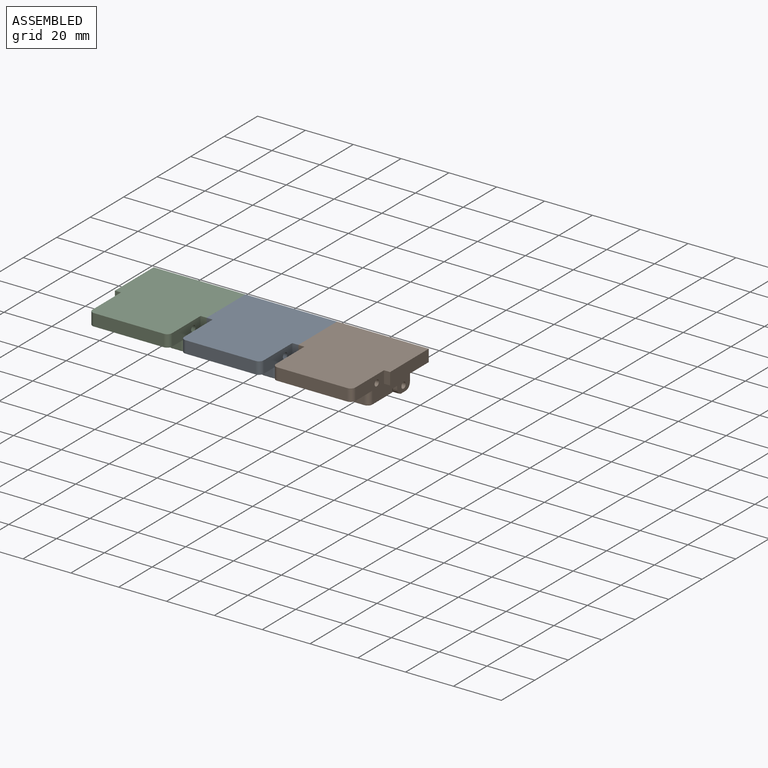
[diagram: assembled view]
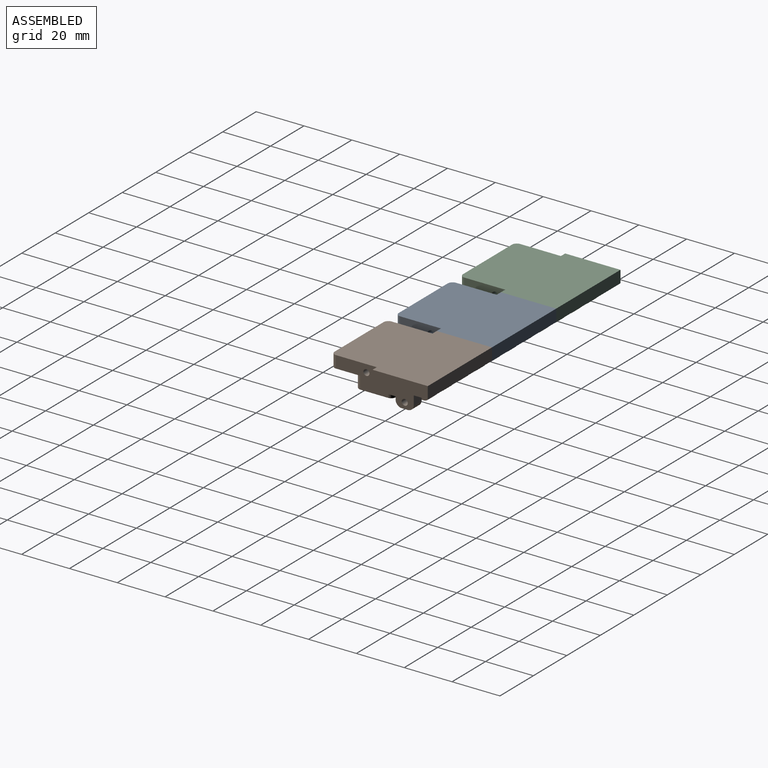
[diagram: assembled view, second angle]
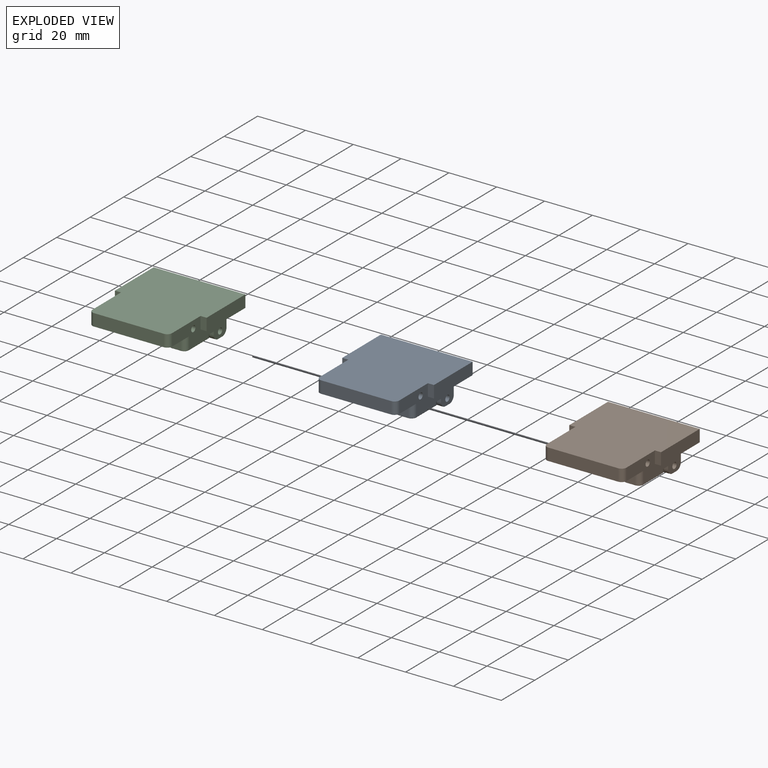
[diagram: exploded view]
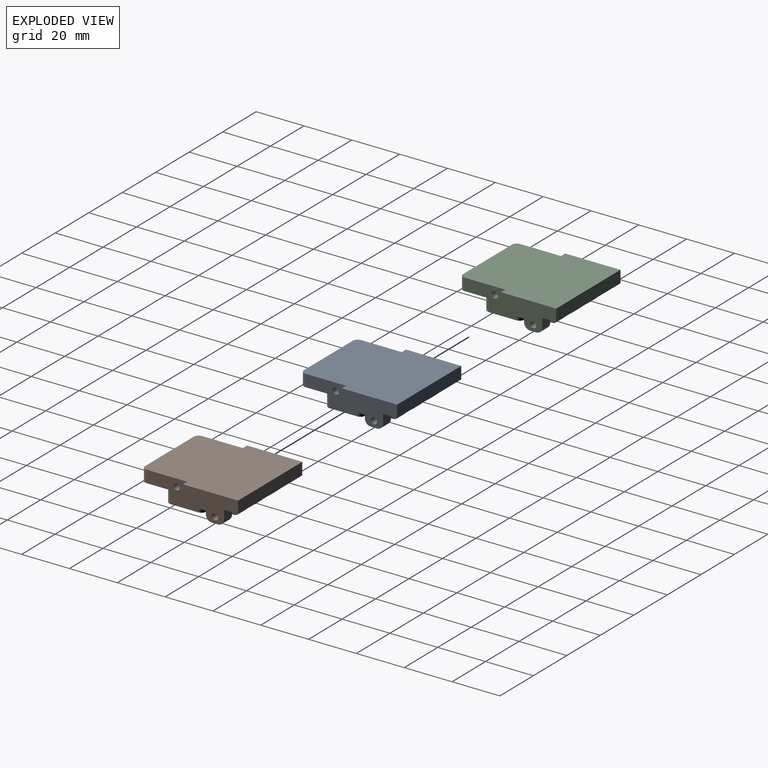
[diagram: exploded view, second angle]
ASSEMBLY  parts=3 mates=2
PART A: 132 faces, bbox 38.4x42.2x12.7 mm
  f0: plane 42.16x38.35mm, normal (0,0,1), area 1518.6mm2, adj f2,f30,f31,f124,f125,f126,f127,f128
  f1: plane 38.35x23.11mm, normal (0,0,-1), area 481.3mm2, adj f14,f15,f16,f30,f31,f38,f39,f40
  f2: plane 29.21x5.08mm, normal (0,-1,0), area 148.4mm2, adj f0,f123,f129,f130
  f3: plane 5.23x1.27mm, normal (0,1,0), area 6.6mm2, adj f10,f21,f66,f92
  f4: plane 5.89x1.27mm, normal (0,1,0), area 7.5mm2, adj f10,f63,f67,f118
  f5: plane 5.89x1.27mm, normal (0,1,0), area 7.5mm2, adj f10,f60,f64,f112
  f6: plane 29.21x5.08mm, normal (0,-1,0), area 71mm2, adj f69,f70,f71,f75,f76,f77,f78,f79
  f7: plane 32.77x16.52mm, normal (0,0,-1), area 145.7mm2, adj f43,f44,f52,f53,f85,f86,f87,f88
  f8: plane 5.38x2.03mm, normal (0,0,-1), area 9.6mm2, adj f116,f117,f118,f119,f120,f121
  f9: plane 5.38x2.03mm, normal (0,0,-1), area 9.6mm2, adj f110,f111,f112,f113,f114,f115
  f10: plane 28.19x11.68mm, normal (0,0,-1), area 296.7mm2, adj f3,f4,f5,f20,f21,f22,f23,f24
  f11: plane 4.7x2.54mm, normal (0,0,-1), area 11.9mm2, adj f43,f47,f50,f53
  f12: plane 4.7x2.54mm, normal (0,0,-1), area 11.9mm2, adj f40,f44,f49,f52
  f13: plane 4.7x2.54mm, normal (0,0,-1), area 11.9mm2, adj f31,f41,f48,f51
  f14: plane 5.08x4.7mm, normal (0,1,0), area 23.9mm2, adj f1,f30,f46,f55
  f15: plane 5.08x4.7mm, normal (0,1,0), area 23.9mm2, adj f1,f43,f47,f50
  f16: plane 5.08x4.7mm, normal (0,1,0), area 23.9mm2, adj f1,f40,f44,f49
  f17: plane 4.7x1.27mm, normal (0,-1,0), area 6mm2, adj f30,f34,f46,f54
  f18: plane 1.27x0.33mm, normal (0,-1,0), area 0.4mm2, adj f29,f34,f47,f53
  f19: plane 1.27x0.33mm, normal (0,-1,0), area 0.4mm2, adj f32,f35,f40,f52
  f20: plane 5.23x1.27mm, normal (0,1,0), area 6.6mm2, adj f10,f33,f61,f108
  f21: plane 10.57x1.27mm, normal (1,0,0), area 13.4mm2, adj f3,f10,f22,f93
  f22: plane 7.51x1.27mm, normal (0.15,-0.99,0), area 9.6mm2, adj f10,f21,f23,f94
  f23: plane 4.99x1.27mm, normal (0,-1,0), area 6.3mm2, adj f10,f22,f24,f95
  f24: plane 1.27x1.17mm, normal (-1,0,0), area 1.5mm2, adj f10,f23,f25,f96
  f25: cylinder r=1.6mm len=3.2mm, axis (0,0,1), area 6.4mm2, adj f10,f24,f26,f98
  f26: plane 1.27x1.17mm, normal (1,0,0), area 1.5mm2, adj f10,f25,f27,f100
  f27: plane 4.99x1.27mm, normal (0,-1,0), area 6.3mm2, adj f10,f26,f28,f102
  f28: plane 7.51x1.27mm, normal (-0.15,-0.99,0), area 9.6mm2, adj f10,f27,f33,f104
  f29: plane 8.13x1.27mm, normal (-0.15,0.99,0), area 10.4mm2, adj f18,f34,f81,f85
  f30: plane 32.51x12.7mm, normal (-1,0,0), area 202.4mm2, adj f0,f1,f14,f17,f34,f37,f54,f55
  f31: plane 32.51x12.7mm, normal (1,0,0), area 202.4mm2, adj f0,f1,f13,f35,f36,f38,f48,f51
  f32: plane 8.13x1.27mm, normal (0.15,0.99,0), area 10.4mm2, adj f19,f35,f84,f97
  f33: plane 10.57x1.27mm, normal (-1,0,0), area 13.4mm2, adj f10,f20,f28,f106
  f34: plane 9.86x3.21mm, normal (0,0,-1), area 7.8mm2, adj f17,f18,f29,f30,f45,f81
  f35: plane 9.86x3.21mm, normal (0,0,-1), area 7.8mm2, adj f19,f31,f32,f36,f39,f84
  f36: plane 4.7x1.27mm, normal (0,-1,0), area 6mm2, adj f31,f35,f41,f51
  f37: plane 4.7x2.54mm, normal (0,0,-1), area 11.9mm2, adj f30,f46,f54,f55
  f38: plane 5.08x4.7mm, normal (0,1,0), area 23.9mm2, adj f1,f31,f41,f48
  f39: plane 4.83x3.81mm, normal (0,1,0), area 18.4mm2, adj f1,f35,f40,f41
  f40: plane 7.62x7.62mm, normal (1,0,0), area 50.2mm2, adj f1,f12,f16,f19,f39,f49,f52,f58
  f41: plane 7.62x7.62mm, normal (-1,0,0), area 50.2mm2, adj f1,f13,f36,f38,f39,f48,f51,f59
  f42: plane 5.08x4.83mm, normal (0,1,0), area 24.5mm2, adj f1,f43,f44,f122
  f43: plane 7.87x7.62mm, normal (1,0,0), area 50.2mm2, adj f1,f7,f11,f15,f42,f50,f53,f56
  f44: plane 7.87x7.62mm, normal (-1,0,0), area 50.2mm2, adj f1,f7,f12,f16,f42,f49,f52,f58
  f45: plane 4.83x3.81mm, normal (0,1,0), area 18.4mm2, adj f1,f34,f46,f47
  f46: plane 7.62x7.62mm, normal (1,0,0), area 50.2mm2, adj f1,f14,f17,f37,f45,f54,f55,f57
  f47: plane 7.62x7.62mm, normal (-1,0,0), area 50.2mm2, adj f1,f11,f15,f18,f45,f50,f53,f56
  f48: cylinder r=2.54mm len=4.7mm, axis (1,0,0), area 18.7mm2, adj f13,f31,f38,f41
  f49: cylinder r=2.54mm len=4.7mm, axis (1,0,0), area 18.7mm2, adj f12,f16,f40,f44
  f50: cylinder r=2.54mm len=4.7mm, axis (1,0,0), area 18.7mm2, adj f11,f15,f43,f47
  f51: cylinder r=2.54mm len=4.7mm, axis (-1,0,0), area 18.7mm2, adj f13,f31,f36,f41
  f52: cylinder r=2.54mm len=4.7mm, axis (-1,0,0), area 17.9mm2, adj f7,f12,f19,f40,f44,f97
  f53: cylinder r=2.54mm len=4.7mm, axis (-1,0,0), area 17.9mm2, adj f7,f11,f18,f43,f47,f85
  f54: cylinder r=2.54mm len=4.7mm, axis (-1,0,0), area 18.7mm2, adj f17,f30,f37,f46
  f55: cylinder r=2.54mm len=4.7mm, axis (1,0,0), area 18.7mm2, adj f14,f30,f37,f46
  f56: cylinder r=1.27mm len=4.7mm, axis (-1,0,0), area 37.5mm2, adj f43,f47
  f57: cylinder r=1.27mm len=4.7mm, axis (-1,0,0), area 37.5mm2, adj f30,f46
  f58: cylinder r=1.27mm len=4.7mm, axis (-1,0,0), area 37.5mm2, adj f40,f44
  f59: cylinder r=1.27mm len=4.7mm, axis (-1,0,0), area 37.5mm2, adj f31,f41
  f60: plane 3.3x2.24mm, normal (1,0,0), area 2.2mm2, adj f5,f10,f62,f69,f72,f79,f110
  f61: plane 3.3x2.24mm, normal (-1,0,0), area 2.2mm2, adj f10,f20,f62,f69,f72,f80,f109
  f62: plane 2.34x1.98mm, normal (0,0,-1), area 4.6mm2, adj f60,f61,f69,f72
  f63: plane 3.3x2.24mm, normal (1,0,0), area 2.2mm2, adj f4,f10,f65,f70,f73,f77,f116
  f64: plane 3.3x2.24mm, normal (-1,0,0), area 2.2mm2, adj f5,f10,f65,f70,f73,f78,f114
  f65: plane 2.34x1.98mm, normal (0,0,-1), area 4.6mm2, adj f63,f64,f70,f73
  f66: plane 3.3x2.24mm, normal (1,0,0), area 2.2mm2, adj f3,f10,f68,f71,f74,f75,f91
  f67: plane 3.3x2.24mm, normal (-1,0,0), area 2.2mm2, adj f4,f10,f68,f71,f74,f76,f120
  f68: plane 2.34x1.98mm, normal (0,0,-1), area 4.6mm2, adj f66,f67,f71,f74
  f69: plane 6.05x2.54mm, normal (0,-0.71,-0.71), area 9.6mm2, adj f6,f60,f61,f62,f79,f80
  f70: plane 6.05x2.54mm, normal (0,-0.71,-0.71), area 9.6mm2, adj f6,f63,f64,f65,f77,f78
  f71: plane 6.05x2.54mm, normal (0,-0.71,-0.71), area 9.6mm2, adj f6,f66,f67,f68,f75,f76
  f72: plane 1.98x0.46mm, normal (0,-0.71,-0.71), area 1.3mm2, adj f10,f60,f61,f62
  f73: plane 1.98x0.46mm, normal (0,-0.71,-0.71), area 1.3mm2, adj f10,f63,f64,f65
  f74: plane 1.98x0.46mm, normal (0,-0.71,-0.71), area 1.3mm2, adj f10,f66,f67,f68
  f75: cylinder r=2.03mm len=4.27mm, axis (0,0,1), area 11.3mm2, adj f6,f66,f71,f90
  f76: cylinder r=2.03mm len=4.27mm, axis (0,0,-1), area 11.3mm2, adj f6,f67,f71,f121
  f77: cylinder r=2.03mm len=4.27mm, axis (0,0,1), area 11.3mm2, adj f6,f63,f70,f117
  f78: cylinder r=2.03mm len=4.27mm, axis (0,0,-1), area 11.3mm2, adj f6,f64,f70,f115
  f79: cylinder r=2.03mm len=4.27mm, axis (0,0,1), area 11.3mm2, adj f6,f60,f69,f111
  f80: cylinder r=2.03mm len=4.27mm, axis (0,0,-1), area 11.3mm2, adj f6,f61,f69,f107
  f81: cylinder r=2.03mm len=2.01mm, axis (0,0,-1), area 3.7mm2, adj f29,f30,f34,f86
  f82: cylinder r=2.03mm len=5.08mm, axis (0,0,-1), area 16.2mm2, adj f6,f30,f88,f123
  f83: cylinder r=2.03mm len=5.08mm, axis (0,0,1), area 16.2mm2, adj f6,f31,f103,f123
  f84: cylinder r=2.03mm len=2.01mm, axis (0,0,1), area 3.7mm2, adj f31,f32,f35,f99
  f85: cylinder r=0.25mm len=9.95mm, axis (0.99,0.15,0), area 3.6mm2, adj f7,f29,f53,f86
  f86: torus R=1.78mm, axis (0,0,1), area 1.1mm2, adj f7,f81,f85,f87
  f87: cylinder r=0.25mm len=11.52mm, axis (0,1,0), area 4.6mm2, adj f7,f30,f86,f88
  f88: torus R=1.78mm, axis (0,0,1), area 1.2mm2, adj f7,f82,f87,f89
  f89: cylinder r=0.25mm len=3.71mm, axis (-1,0,0), area 1.5mm2, adj f6,f7,f88,f90
  f90: torus R=1.78mm, axis (0,0,1), area 1.2mm2, adj f7,f75,f89,f91
  f91: cylinder r=0.25mm len=0.51mm, axis (0,-1,0), area 0.2mm2, adj f7,f66,f90,f92
  f92: cylinder r=0.25mm len=5.49mm, axis (1,0,0), area 2.1mm2, adj f3,f7,f91,f93
  f93: cylinder r=0.25mm len=11.05mm, axis (0,-1,0), area 4.3mm2, adj f7,f21,f92,f94
  f94: cylinder r=0.25mm len=7.78mm, axis (-0.99,-0.15,0), area 3.1mm2, adj f7,f22,f93,f95
  f95: cylinder r=0.25mm len=5.26mm, axis (-1,0,0), area 2mm2, adj f7,f23,f94,f96
  f96: cylinder r=0.25mm len=1.42mm, axis (0,1,0), area 0.5mm2, adj f7,f24,f95,f98
  f97: cylinder r=0.25mm len=9.95mm, axis (0.99,-0.15,0), area 3.6mm2, adj f7,f32,f52,f99
  f98: torus R=1.35mm, axis (0,0,1), area 1.9mm2, adj f7,f25,f96,f100
  f99: torus R=1.78mm, axis (0,0,1), area 1.1mm2, adj f7,f84,f97,f101
  f100: cylinder r=0.25mm len=1.42mm, axis (0,-1,0), area 0.5mm2, adj f7,f26,f98,f102
  f101: cylinder r=0.25mm len=11.52mm, axis (0,-1,0), area 4.6mm2, adj f7,f31,f99,f103
  f102: cylinder r=0.25mm len=5.26mm, axis (-1,0,0), area 2mm2, adj f7,f27,f100,f104
  f103: torus R=1.78mm, axis (0,0,1), area 1.2mm2, adj f7,f83,f101,f105
  f104: cylinder r=0.25mm len=7.78mm, axis (-0.99,0.15,0), area 3.1mm2, adj f7,f28,f102,f106
  f105: cylinder r=0.25mm len=3.71mm, axis (-1,0,0), area 1.5mm2, adj f6,f7,f103,f107
  f106: cylinder r=0.25mm len=11.05mm, axis (0,1,0), area 4.3mm2, adj f7,f33,f104,f108
  f107: torus R=1.78mm, axis (0,0,1), area 1.2mm2, adj f7,f80,f105,f109
  f108: cylinder r=0.25mm len=5.49mm, axis (1,0,0), area 2.1mm2, adj f7,f20,f106,f109
  f109: cylinder r=0.25mm len=0.51mm, axis (0,1,0), area 0.2mm2, adj f7,f61,f107,f108
  f110: cylinder r=0.25mm len=0.51mm, axis (0,-1,0), area 0.2mm2, adj f9,f60,f111,f112
  f111: torus R=1.78mm, axis (0,0,1), area 1.2mm2, adj f9,f79,f110,f113
  f112: cylinder r=0.25mm len=5.89mm, axis (1,0,0), area 2.2mm2, adj f5,f9,f110,f114
  f113: cylinder r=0.25mm len=1.83mm, axis (-1,0,0), area 0.7mm2, adj f6,f9,f111,f115
  f114: cylinder r=0.25mm len=0.51mm, axis (0,1,0), area 0.2mm2, adj f9,f64,f112,f115
  f115: torus R=1.78mm, axis (0,0,1), area 1.2mm2, adj f9,f78,f113,f114
  f116: cylinder r=0.25mm len=0.51mm, axis (0,-1,0), area 0.2mm2, adj f8,f63,f117,f118
  f117: torus R=1.78mm, axis (0,0,1), area 1.2mm2, adj f8,f77,f116,f119
  f118: cylinder r=0.25mm len=5.89mm, axis (1,0,0), area 2.2mm2, adj f4,f8,f116,f120
  f119: cylinder r=0.25mm len=1.83mm, axis (-1,0,0), area 0.7mm2, adj f6,f8,f117,f121
  f120: cylinder r=0.25mm len=0.51mm, axis (0,1,0), area 0.2mm2, adj f8,f67,f118,f121
  f121: torus R=1.78mm, axis (0,0,1), area 1.2mm2, adj f8,f76,f119,f120
  f122: cylinder r=0.25mm len=4.83mm, axis (-1,0,0), area 1.9mm2, adj f7,f42,f43,f44
  f123: plane 33.27x12.19mm, normal (0,0,-1), area 338.1mm2, adj f2,f6,f30,f31,f82,f83,f129,f130
  f124: plane 38.35x5.08mm, normal (0,1,0), area 194.8mm2, adj f0,f1,f125,f126
  f125: plane 23.11x5.08mm, normal (-1,0,0), area 117.4mm2, adj f0,f1,f124,f127
  f126: plane 23.11x5.08mm, normal (1,0,0), area 117.4mm2, adj f0,f1,f124,f128
  f127: plane 5.08x2.54mm, normal (0,-1,0), area 12.9mm2, adj f0,f1,f30,f125
  f128: plane 5.08x2.54mm, normal (0,-1,0), area 12.9mm2, adj f0,f1,f31,f126
  f129: cylinder r=2.03mm len=5.08mm, axis (0,0,1), area 16.2mm2, adj f0,f2,f31,f123
  f130: cylinder r=2.03mm len=5.08mm, axis (0,0,-1), area 16.2mm2, adj f0,f2,f30,f123
  f131: cylinder r=1.27mm len=33.27mm, axis (-1,0,0), area 265.5mm2, adj f30,f31
PART B: same geometry as A
PART C: same geometry as A
PLACE A rot(axis=(0.1,0.99,0.11),0deg) t=(22.94,-35.29,13.76)mm
PLACE B rot(axis=(0.1,0.99,0.11),0deg) t=(61.29,-35.29,13.76)mm
PLACE C rot(axis=(0.1,0.99,0.11),0deg) t=(-15.41,-35.29,13.76)mm
MATE fastened A.f126 <-> B.f125  axis (1,0,0) through (55.71,-6.33,23.46)mm
MATE fastened C.f126 <-> A.f125  axis (1,0,0) through (17.35,-6.33,23.46)mm
